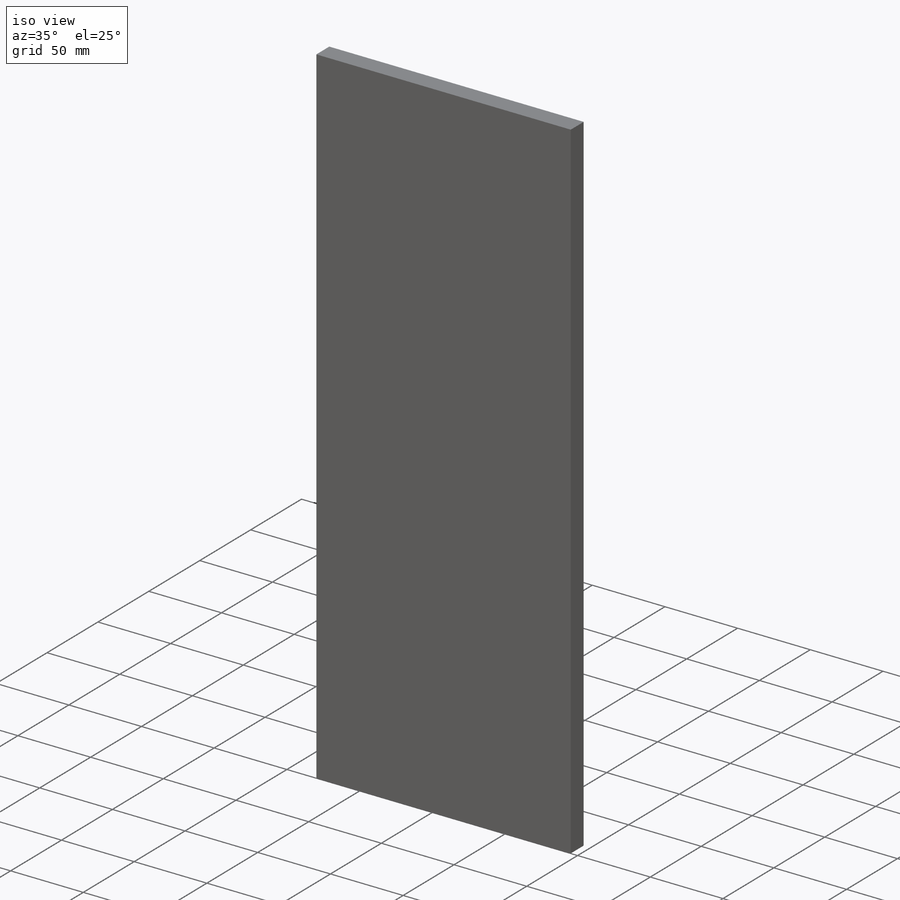
[diagram: iso view]
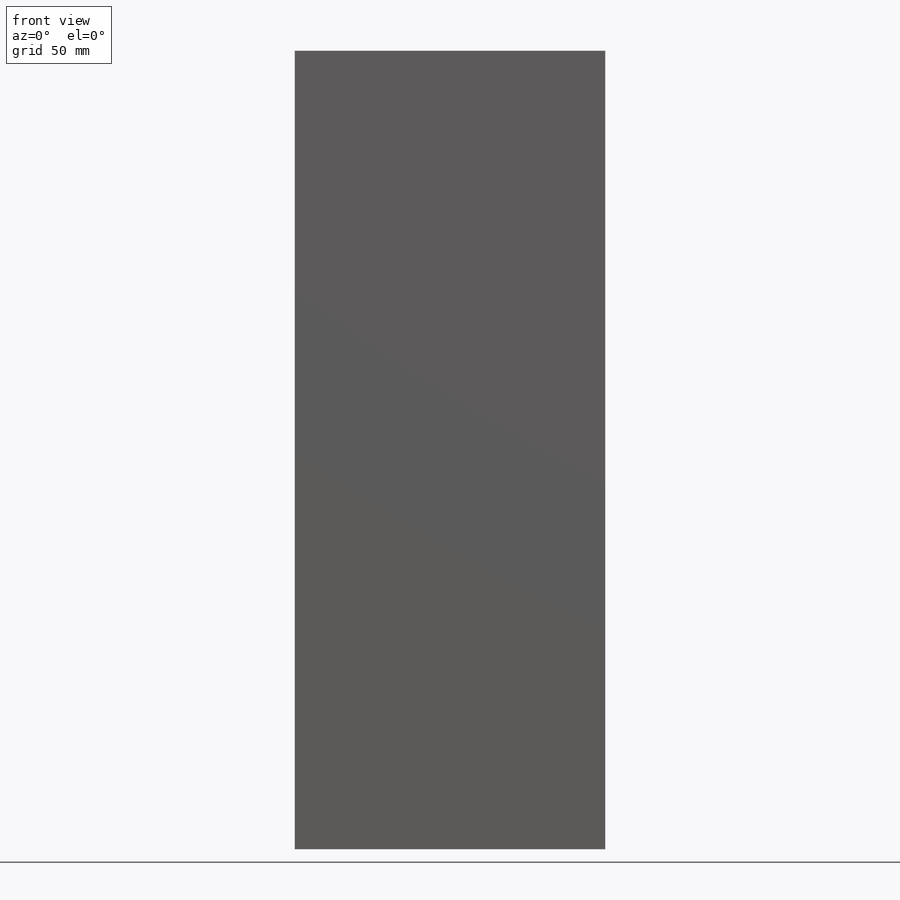
[diagram: front view]
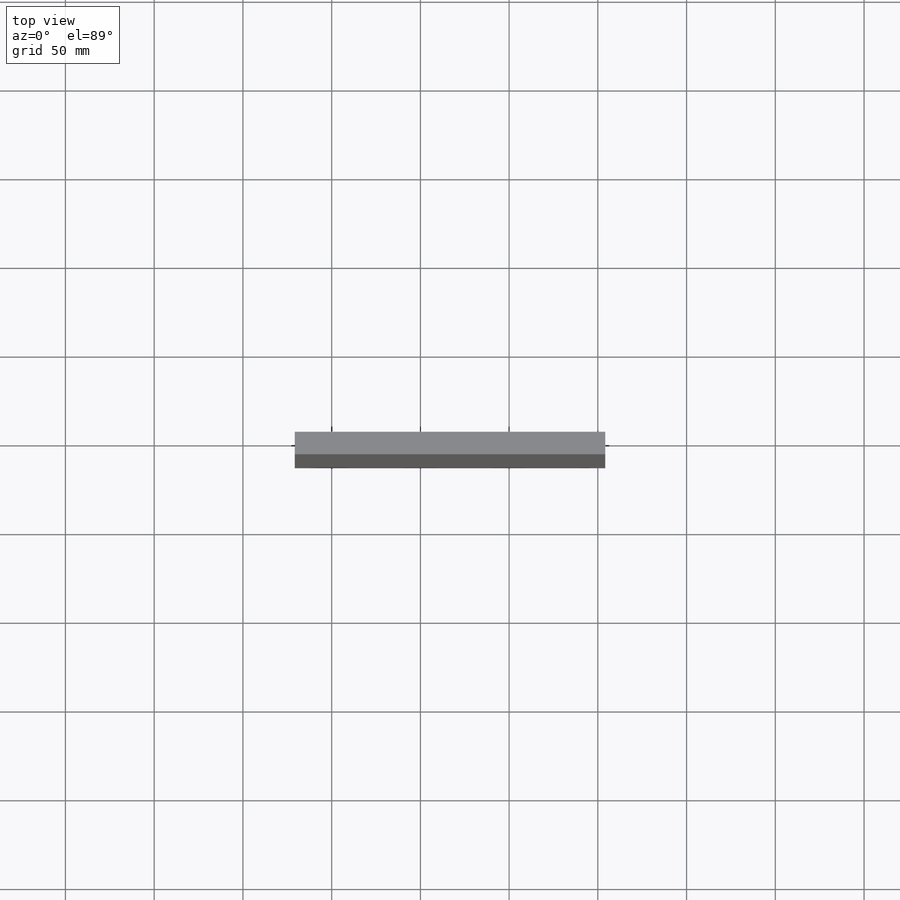
[diagram: top view]
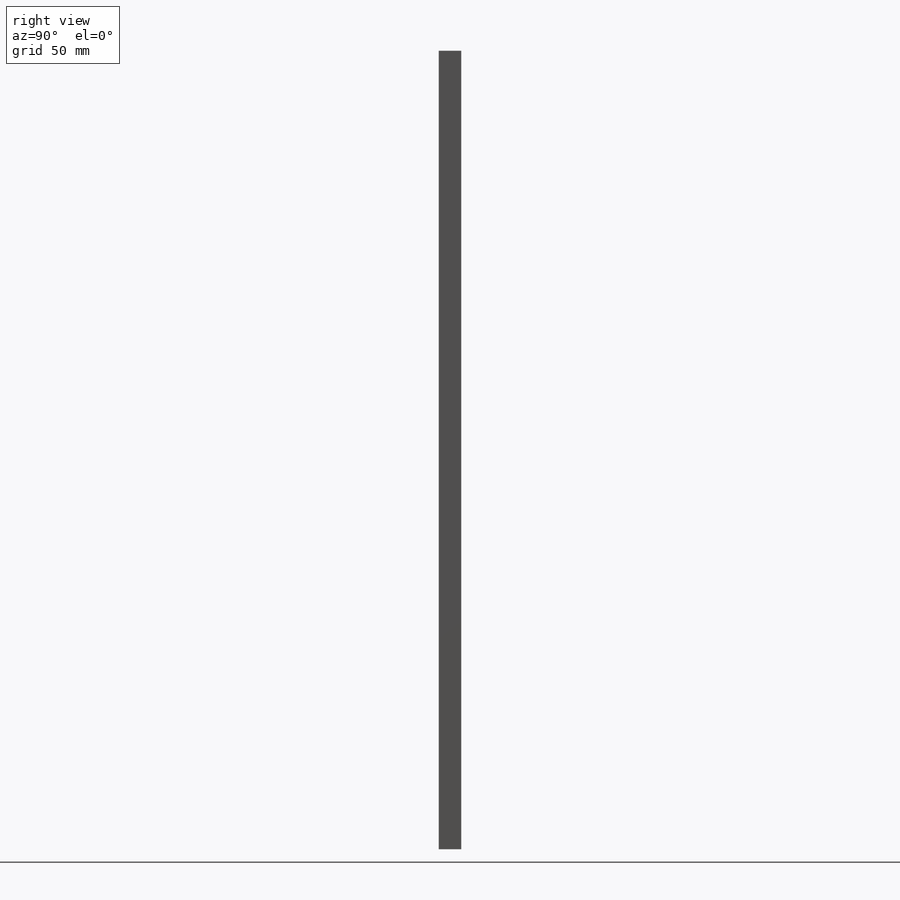
[diagram: right view]
SOLIDWORKS PART (.sldprt)
format: sldprt  version: not decoded by parser v0  size: 318,976 bytes
history: native  units: mm
features: sketch x7, cut_extrude x3, pattern_circular x2, material x1, extrude x1, hole x1, plane x1, mirror x1 + 1 further entry (+16 scaffold rows collapsed)
feature tree (34):
  scaffold x16  (default folders/planes/origin — collapsed)
  material  "Material <not specified>"
  sketch  "Sketch1"  dims[D1=450.0mm D2=175.0mm]
  extrude  "Boss-Extrude1"  Depth=12.7mm
  sketch  "Sketch3"  dims[D1=0.1mm D2=0.1mm]
  cut_extrude  "Cut-Extrude1"  [1 undecoded]
  pattern_circular  "CirPattern1"  Count=3 Angle=51.26deg
  sketch  "Sketch4"  dims[D1=0.1mm]
  cut_extrude  "Cut-Extrude2"  [1 undecoded]
  pattern_circular  "CirPattern2"  Count=2 Angle=51.26deg
  hole  "Ø5.0 (5) Diameter Hole1"  Diameter=5mm Depth=12.7mm
  sketch  "Sketch8"
  sketch  "Sketch7"  dims[hole-wizard template sketch: 60 standard entries collapsed; hole parameters kept: c18.Thru Hole Depth=12.7mm]
  sketch  "Sketch11"
  "Sketch-Pattern9"
  sketch  "Sketch9"  dims[D7=1.0mm D1=0.75mm D2=0.75mm D3=1.0mm D4=1.0mm D5=1.0mm D6=1.0mm]
  cut_extrude  "Cut-Extrude3"  [1 undecoded]
  plane  "Plane1"
  mirror  "Mirror1"
decode coverage: 9 of 15 modeling features carry decoded parameters; 1 rows unclassified (native names shown)
note: ~ marks probable driven/reference dimensions
note: 3 parameter values undecoded
summary: no parameter record found for 3 features
note: suppression state not decoded; provenance and decode notes live in map.json
